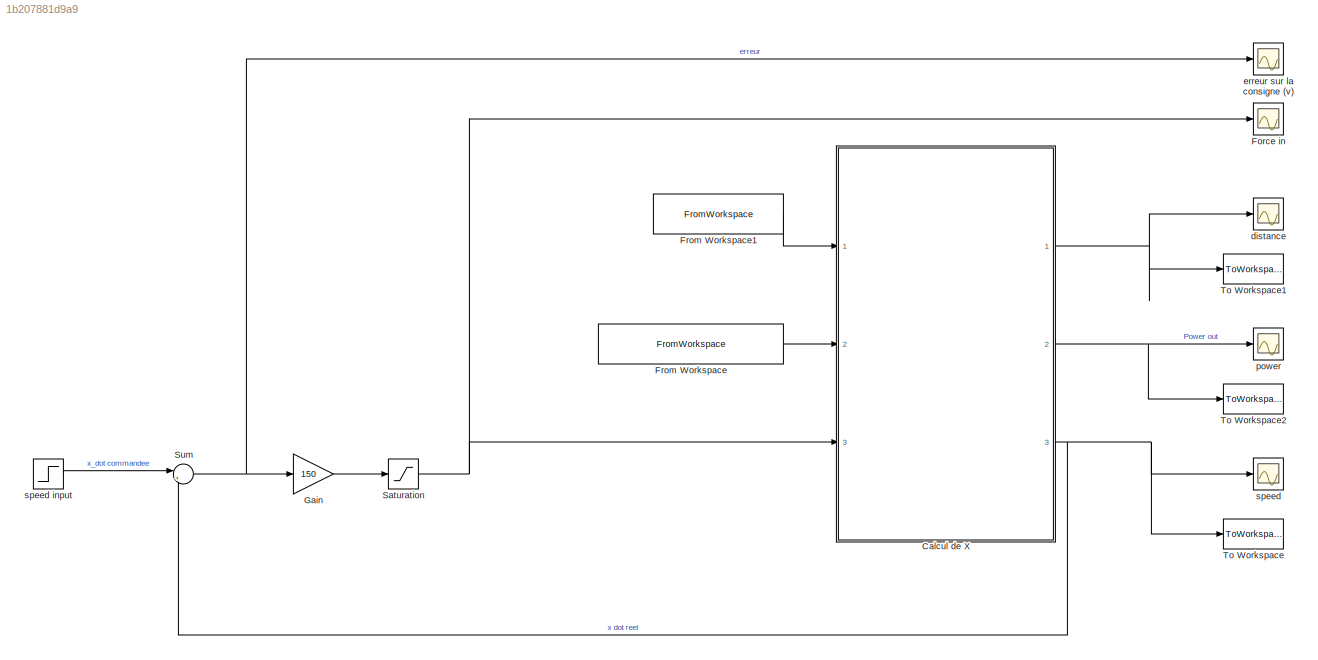
MODEL slx_1b207881d9a9
KIND model
CONFIG AbsTol = auto
CONFIG FixedStep = 0.05
CONFIG MaxStep = auto
CONFIG MinStep = auto
CONFIG RelTol = 1e-3
CONFIG SampleTimeConstraint = Unconstrained
CONFIG Solver = ode45
CONFIG SolverMode = Auto
CONFIG SolverName = ode45
CONFIG StartTime = 0.0
CONFIG StopTime = 630
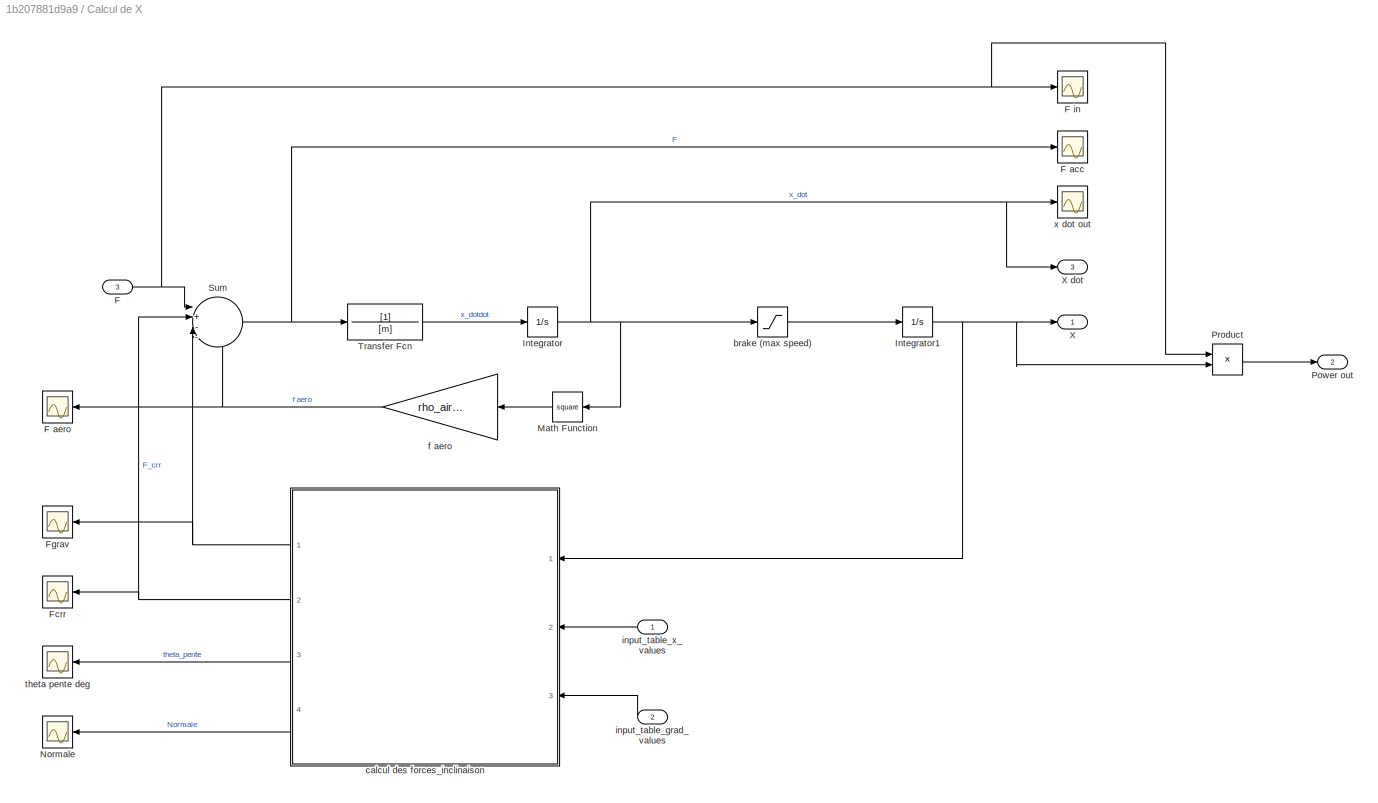
BLOCK [SubSystem] Calcul de X
  Ports = [3, 3]
  RequestExecContextInheritance = off
BLOCK [Inport] Calcul de X/F
  IconDisplay = Port number
  Port = 3
BLOCK [Scope] Calcul de X/F acc
  Floating = off
  NumInputPorts = 1
  Ports = [1]
  SaveName = ScopeData7
  YMax = -1398.12
  YMin = -1398.32
  ZoomMode = yonly
BLOCK [Scope] Calcul de X/F aero
  Floating = off
  NumInputPorts = 1
  Ports = [1]
  SaveName = ScopeData14
  ZoomMode = xonly
BLOCK [Scope] Calcul de X/F in
  Floating = off
  NumInputPorts = 1
  Ports = [1]
  SaveName = ScopeData12
  ZoomMode = xonly
BLOCK [Scope] Calcul de X/Fcrr
  Floating = off
  NumInputPorts = 1
  Ports = [1]
  SaveName = ScopeData10
BLOCK [Scope] Calcul de X/Fgrav
  Floating = off
  NumInputPorts = 1
  Ports = [1]
  SaveName = ScopeData9
BLOCK [Integrator] Calcul de X/Integrator
  Ports = [1, 1]
BLOCK [Integrator] Calcul de X/Integrator1
  Ports = [1, 1]
BLOCK [Math] Calcul de X/Math Function
  Operator = square
  Ports = [1, 1]
BLOCK [Scope] Calcul de X/Normale
  Floating = off
  NumInputPorts = 1
  Ports = [1]
  SaveName = ScopeData2
BLOCK [Outport] Calcul de X/Power out
  IconDisplay = Port number
  Port = 2
BLOCK [Product] Calcul de X/Product
  InputSameDT = off
  OutDataTypeStr = Inherit: Inherit via internal rule
  Ports = [2, 1]
  RndMeth = Floor
  SaturateOnIntegerOverflow = off
BLOCK [Sum] Calcul de X/Sum
  IconShape = round
  InputSameDT = off
  Inputs = |+---
  OutDataTypeStr = Inherit: Inherit via internal rule
  Ports = [4, 1]
  SaturateOnIntegerOverflow = off
BLOCK [TransferFcn] Calcul de X/Transfer Fcn
  Denominator = [m]
BLOCK [Outport] Calcul de X/X
  IconDisplay = Port number
BLOCK [Outport] Calcul de X/X dot
  IconDisplay = Port number
  Port = 3
BLOCK [Saturate] Calcul de X/brake (max speed)
  InputPortMap = u0
  LowerLimit = 0
  Ports = [1, 1]
  UpperLimit = target_speed_m_s + 0.5
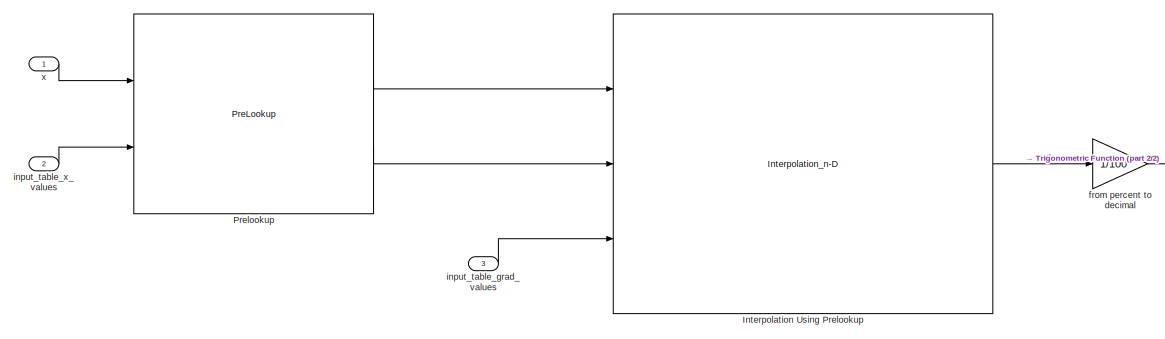
[diagram: Calcul de X/calcul des forces_inclinaison - part 1/2, left side, full height]
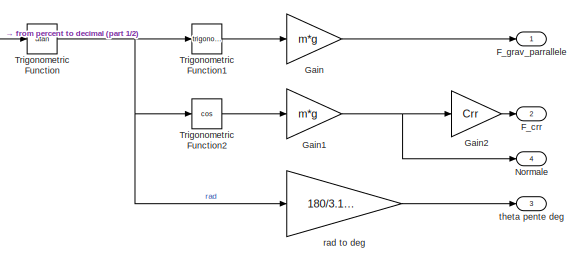
[diagram: Calcul de X/calcul des forces_inclinaison - part 2/2, middle right region]
BLOCK [SubSystem] Calcul de X/calcul des forces_inclinaison
  Ports = [3, 4]
  RequestExecContextInheritance = off
BLOCK [Outport] Calcul de X/calcul des forces_inclinaison/F_crr
  IconDisplay = Port number
  Port = 2
BLOCK [Outport] Calcul de X/calcul des forces_inclinaison/F_grav_parrallele
  IconDisplay = Port number
BLOCK [Gain] Calcul de X/calcul des forces_inclinaison/Gain
  Gain = m*g
  OutDataTypeStr = Inherit: Inherit via internal rule
  ParamDataTypeStr = Inherit: Inherit via internal rule
  SaturateOnIntegerOverflow = off
BLOCK [Gain] Calcul de X/calcul des forces_inclinaison/Gain1
  Gain = m*g
  OutDataTypeStr = Inherit: Inherit via internal rule
  ParamDataTypeStr = Inherit: Inherit via internal rule
  SaturateOnIntegerOverflow = off
BLOCK [Gain] Calcul de X/calcul des forces_inclinaison/Gain2
  Gain = Crr
  OutDataTypeStr = Inherit: Inherit via internal rule
  ParamDataTypeStr = Inherit: Inherit via internal rule
  SaturateOnIntegerOverflow = off
BLOCK [Interpolation_n-D] Calcul de X/calcul des forces_inclinaison/Interpolation Using Prelookup
  InputPortMap = u0,u1,p2
  IntermediateResultsDataTypeStr = Inherit: Inherit via internal rule
  InternalRulePriority = Speed
  NumberOfTableDimensions = 1
  Ports = [3, 1]
  TableSource = Input port
BLOCK [Outport] Calcul de X/calcul des forces_inclinaison/Normale
  IconDisplay = Port number
  Port = 4
BLOCK [PreLookup] Calcul de X/calcul des forces_inclinaison/Prelookup
  BreakpointsData = [10:10:110]
  BreakpointsDataSource = Input port
  ExtrapMethod = Linear
  InputPortMap = u0,p1
  Ports = [2, 2]
BLOCK [Trigonometry] Calcul de X/calcul des forces_inclinaison/Trigonometric Function
  Operator = atan
  Ports = [1, 1]
BLOCK [Trigonometry] Calcul de X/calcul des forces_inclinaison/Trigonometric Function1
  Ports = [1, 1]
BLOCK [Trigonometry] Calcul de X/calcul des forces_inclinaison/Trigonometric Function2
  Operator = cos
  Ports = [1, 1]
BLOCK [Gain] Calcul de X/calcul des forces_inclinaison/from percent to decimal
  Gain = 1/100
  OutDataTypeStr = Inherit: Inherit via internal rule
  ParamDataTypeStr = Inherit: Inherit via internal rule
  SaturateOnIntegerOverflow = off
BLOCK [Inport] Calcul de X/calcul des forces_inclinaison/input_table_grad_values
  IconDisplay = Port number
  Port = 3
BLOCK [Inport] Calcul de X/calcul des forces_inclinaison/input_table_x_values
  IconDisplay = Port number
  Port = 2
BLOCK [Gain] Calcul de X/calcul des forces_inclinaison/rad to deg
  Gain = 180/3.1416
  OutDataTypeStr = Inherit: Inherit via internal rule
  ParamDataTypeStr = Inherit: Inherit via internal rule
  SaturateOnIntegerOverflow = off
BLOCK [Outport] Calcul de X/calcul des forces_inclinaison/theta pente deg
  IconDisplay = Port number
  Port = 3
BLOCK [Inport] Calcul de X/calcul des forces_inclinaison/x
  IconDisplay = Port number
BLOCK [Gain] Calcul de X/f aero
  Gain = rho_air*area/2*Cd
  OutDataTypeStr = Inherit: Inherit via internal rule
  ParamDataTypeStr = Inherit: Inherit via internal rule
  SaturateOnIntegerOverflow = off
BLOCK [Inport] Calcul de X/input_table_grad_values
  IconDisplay = Port number
  Port = 2
BLOCK [Inport] Calcul de X/input_table_x_values
  IconDisplay = Port number
BLOCK [Scope] Calcul de X/theta pente deg 
  Floating = off
  NumInputPorts = 1
  Ports = [1]
  SaveName = ScopeData3
BLOCK [Scope] Calcul de X/x dot out
  Floating = off
  NumInputPorts = 1
  Ports = [1]
  SaveName = ScopeData13
  ZoomMode = xonly
BLOCK [Scope] Force in
  Floating = off
  NumInputPorts = 1
  Ports = [1]
  SaveName = ScopeData5
  TimeRange = 60
  YMax = 5.5
  YMin = 4
BLOCK [FromWorkspace] From Workspace
  SampleTime = 0
  VariableName = grad_in
  ZeroCross = on
BLOCK [FromWorkspace] From Workspace1
  SampleTime = 0
  VariableName = x_in_m
  ZeroCross = on
BLOCK [Gain] Gain
  Gain = 150
  OutDataTypeStr = Inherit: Inherit via internal rule
  ParamDataTypeStr = Inherit: Inherit via internal rule
  SaturateOnIntegerOverflow = off
BLOCK [Saturate] Saturation
  InputPortMap = u0
  LowerLimit = -200
  Ports = [1, 1]
  UpperLimit = 200
BLOCK [Sum] Sum
  IconShape = round
  InputSameDT = off
  Inputs = |+-
  OutDataTypeStr = Inherit: Inherit via internal rule
  Ports = [2, 1]
  SaturateOnIntegerOverflow = off
BLOCK [ToWorkspace] To Workspace
  FixptAsFi = on
  MaxDataPoints = inf
  Ports = [1]
  SampleTime = -1
  Save2DSignal = 2-D array (concatenate along first dimension)
  VariableName = speed_out
BLOCK [ToWorkspace] To Workspace1
  FixptAsFi = on
  MaxDataPoints = inf
  Ports = [1]
  SampleTime = -1
  Save2DSignal = 2-D array (concatenate along first dimension)
  VariableName = pos_out
BLOCK [ToWorkspace] To Workspace2
  FixptAsFi = on
  MaxDataPoints = inf
  Ports = [1]
  SampleTime = -1
  Save2DSignal = 2-D array (concatenate along first dimension)
  VariableName = p_out
BLOCK [Scope] distance
  Floating = off
  NumInputPorts = 1
  Ports = [1]
  ZoomMode = yonly
BLOCK [Scope] erreur sur la consigne (v)
  Floating = off
  NumInputPorts = 1
  Ports = [1]
  SaveName = ScopeData6
BLOCK [Scope] power
  Floating = off
  NumInputPorts = 1
  Ports = [1]
  SaveName = ScopeData4
  ZoomMode = xonly
BLOCK [Scope] speed
  Floating = off
  NumInputPorts = 1
  Ports = [1]
  SaveName = ScopeData1
BLOCK [Step] speed input
  After = target_speed_m_s
  SampleTime = 1
  Time = 0.1
NET Calcul de X/F:1 -> Calcul de X/F in:1, Calcul de X/Product:1, Calcul de X/Sum:1
NET Calcul de X/Integrator1:1 -> Calcul de X/Product:2, Calcul de X/X:1, Calcul de X/calcul des forces_inclinaison:1
NET Calcul de X/Integrator:1 -> Calcul de X/Math Function:1, Calcul de X/X dot:1, Calcul de X/brake (max speed):1, Calcul de X/x dot out:1
LINE Calcul de X/Math Function:1 -> Calcul de X/f aero:1
LINE Calcul de X/Product:1 -> Calcul de X/Power out:1
NET Calcul de X/Sum:1 -> Calcul de X/F acc:1, Calcul de X/Transfer Fcn:1
LINE Calcul de X/Transfer Fcn:1 -> Calcul de X/Integrator:1
LINE Calcul de X/brake (max speed):1 -> Calcul de X/Integrator1:1
NET Calcul de X/calcul des forces_inclinaison/Gain1:1 -> Calcul de X/calcul des forces_inclinaison/Gain2:1, Calcul de X/calcul des forces_inclinaison/Normale:1
LINE Calcul de X/calcul des forces_inclinaison/Gain2:1 -> Calcul de X/calcul des forces_inclinaison/F_crr:1
LINE Calcul de X/calcul des forces_inclinaison/Gain:1 -> Calcul de X/calcul des forces_inclinaison/F_grav_parrallele:1
LINE Calcul de X/calcul des forces_inclinaison/Interpolation Using Prelookup:1 -> Calcul de X/calcul des forces_inclinaison/from percent to decimal:1
LINE Calcul de X/calcul des forces_inclinaison/Prelookup:1 -> Calcul de X/calcul des forces_inclinaison/Interpolation Using Prelookup:1
LINE Calcul de X/calcul des forces_inclinaison/Prelookup:2 -> Calcul de X/calcul des forces_inclinaison/Interpolation Using Prelookup:2
LINE Calcul de X/calcul des forces_inclinaison/Trigonometric Function1:1 -> Calcul de X/calcul des forces_inclinaison/Gain:1
LINE Calcul de X/calcul des forces_inclinaison/Trigonometric Function2:1 -> Calcul de X/calcul des forces_inclinaison/Gain1:1
NET Calcul de X/calcul des forces_inclinaison/Trigonometric Function:1 -> Calcul de X/calcul des forces_inclinaison/Trigonometric Function1:1, Calcul de X/calcul des forces_inclinaison/Trigonometric Function2:1, Calcul de X/calcul des forces_inclinaison/rad to deg:1
LINE Calcul de X/calcul des forces_inclinaison/from percent to decimal:1 -> Calcul de X/calcul des forces_inclinaison/Trigonometric Function:1
LINE Calcul de X/calcul des forces_inclinaison/input_table_grad_values:1 -> Calcul de X/calcul des forces_inclinaison/Interpolation Using Prelookup:3
LINE Calcul de X/calcul des forces_inclinaison/input_table_x_values:1 -> Calcul de X/calcul des forces_inclinaison/Prelookup:2
LINE Calcul de X/calcul des forces_inclinaison/rad to deg:1 -> Calcul de X/calcul des forces_inclinaison/theta pente deg:1
LINE Calcul de X/calcul des forces_inclinaison/x:1 -> Calcul de X/calcul des forces_inclinaison/Prelookup:1
NET Calcul de X/calcul des forces_inclinaison:1 -> Calcul de X/Fgrav:1, Calcul de X/Sum:3
NET Calcul de X/calcul des forces_inclinaison:2 -> Calcul de X/Fcrr:1, Calcul de X/Sum:2
LINE Calcul de X/calcul des forces_inclinaison:3 -> Calcul de X/theta pente deg :1
LINE Calcul de X/calcul des forces_inclinaison:4 -> Calcul de X/Normale:1
NET Calcul de X/f aero:1 -> Calcul de X/F aero:1, Calcul de X/Sum:4
LINE Calcul de X/input_table_grad_values:1 -> Calcul de X/calcul des forces_inclinaison:3
LINE Calcul de X/input_table_x_values:1 -> Calcul de X/calcul des forces_inclinaison:2
NET Calcul de X:1 -> To Workspace1:1, distance:1
NET Calcul de X:2 -> To Workspace2:1, power:1
NET Calcul de X:3 -> Sum:2, To Workspace:1, speed:1
LINE From Workspace1:1 -> Calcul de X:1
LINE From Workspace:1 -> Calcul de X:2
LINE Gain:1 -> Saturation:1
NET Saturation:1 -> Calcul de X:3, Force in:1
NET Sum:1 -> Gain:1, erreur sur la consigne (v):1
LINE speed input:1 -> Sum:1
note: NET lines group one-source signal fan-out (src -> all destinations, sorted); 1:1 wires keep LINE
